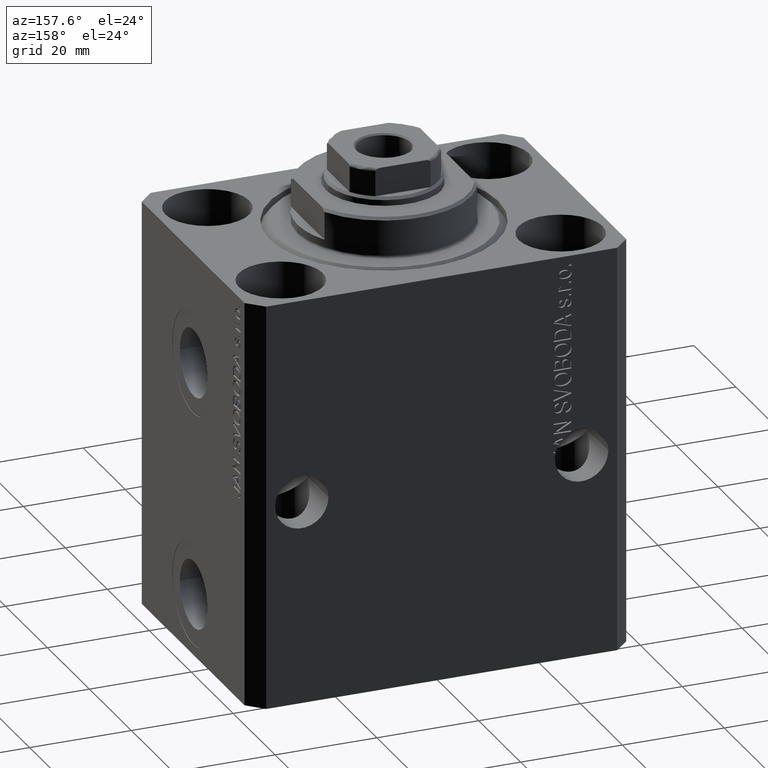
[diagram: clean part render]
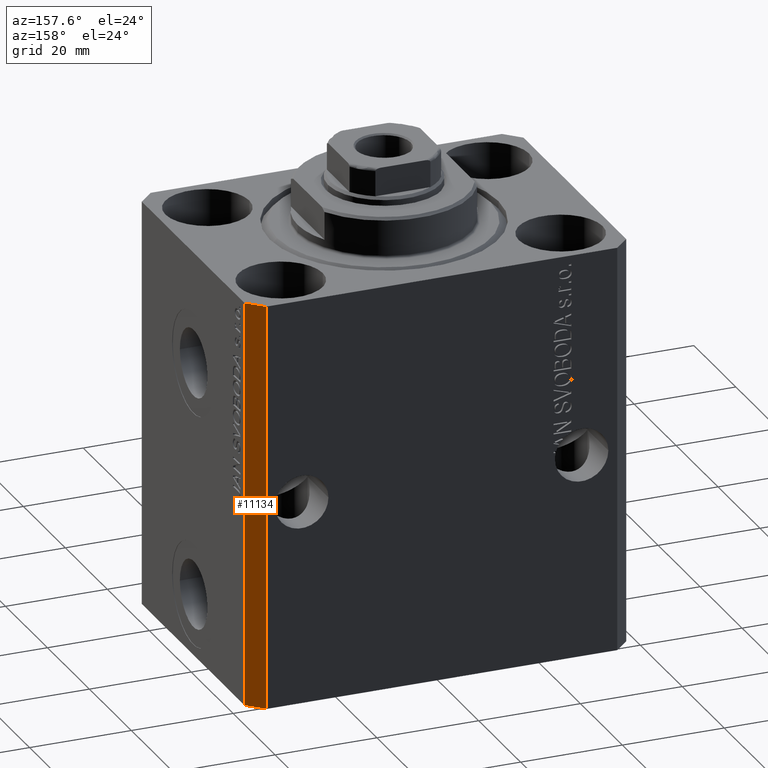
[diagram: same view with one face highlighted and labeled with its STEP entity id]
A machine part, auxiliary view. The second image highlights one B-rep face of the part: STEP entity #11134.
In plain terms, the highlighted planar face has unit normal (0.7071, 0.7071, 0).
Its self-contained STEP definition (entity closure, byte-faithful):
#183 = EDGE_LOOP ( 'NONE', ( #43701, #17239, #13094, #13806 ) ) ;
#1402 = VERTEX_POINT ( 'NONE', #8449 ) ;
#2260 = LINE ( 'NONE', #8936, #16099 ) ;
#2406 = DIRECTION ( 'NONE',  ( -0.7071067811865356934, 0.7071067811865594521, 0.000000000000000000 ) ) ;
#2920 = EDGE_CURVE ( 'NONE', #21711, #4599, #31614, .T. ) ;
#4280 = CARTESIAN_POINT ( 'NONE',  ( 37.50000000000051870, 24.49999999999995381, 0.000000000000000000 ) ) ;
#4599 = VERTEX_POINT ( 'NONE', #4280 ) ;
#5148 = CARTESIAN_POINT ( 'NONE',  ( 37.50000000000051870, 24.49999999999995381, -80.00000000000000000 ) ) ;
#8449 = CARTESIAN_POINT ( 'NONE',  ( 34.50000000000056843, 27.50000000000000000, 0.000000000000000000 ) ) ;
#8936 = CARTESIAN_POINT ( 'NONE',  ( 34.50000000000056843, 27.50000000000000000, -80.00000000000000000 ) ) ;
#9157 = DIRECTION ( 'NONE',  ( 0.000000000000000000, 0.000000000000000000, 1.000000000000000000 ) ) ;
#10891 = CARTESIAN_POINT ( 'NONE',  ( 37.50000000000051870, 24.49999999999995381, -80.00000000000000000 ) ) ;
#11134 = ADVANCED_FACE ( 'NONE', ( #39693 ), #12276, .T. ) ;
#11378 = EDGE_CURVE ( 'NONE', #21711, #20206, #25149, .T. ) ;
#11466 = LINE ( 'NONE', #18592, #40387 ) ;
#11552 = AXIS2_PLACEMENT_3D ( 'NONE', #5148, #42616, #43277 ) ;
#12276 = PLANE ( 'NONE',  #11552 ) ;
#13094 = ORIENTED_EDGE ( 'NONE', *, *, #11378, .T. ) ;
#13806 = ORIENTED_EDGE ( 'NONE', *, *, #25464, .T. ) ;
#16099 = VECTOR ( 'NONE', #9157, 1000.000000000000000 ) ;
#17239 = ORIENTED_EDGE ( 'NONE', *, *, #2920, .F. ) ;
#18592 = CARTESIAN_POINT ( 'NONE',  ( 37.50000000000051870, 24.49999999999995381, 0.000000000000000000 ) ) ;
#18709 = VECTOR ( 'NONE', #2406, 1000.000000000000114 ) ;
#19131 = CARTESIAN_POINT ( 'NONE',  ( 37.50000000000051870, 24.49999999999995381, -80.00000000000000000 ) ) ;
#20206 = VERTEX_POINT ( 'NONE', #25365 ) ;
#21711 = VERTEX_POINT ( 'NONE', #41758 ) ;
#25149 = LINE ( 'NONE', #19131, #18709 ) ;
#25365 = CARTESIAN_POINT ( 'NONE',  ( 34.50000000000056843, 27.50000000000000000, -80.00000000000000000 ) ) ;
#25464 = EDGE_CURVE ( 'NONE', #20206, #1402, #2260, .T. ) ;
#28440 = VECTOR ( 'NONE', #30129, 1000.000000000000000 ) ;
#30129 = DIRECTION ( 'NONE',  ( 0.000000000000000000, 0.000000000000000000, 1.000000000000000000 ) ) ;
#31614 = LINE ( 'NONE', #10891, #28440 ) ;
#34666 = DIRECTION ( 'NONE',  ( -0.7071067811865356934, 0.7071067811865594521, 0.000000000000000000 ) ) ;
#39693 = FACE_OUTER_BOUND ( 'NONE', #183, .T. ) ;
#40387 = VECTOR ( 'NONE', #34666, 1000.000000000000114 ) ;
#41758 = CARTESIAN_POINT ( 'NONE',  ( 37.50000000000051870, 24.49999999999995381, -80.00000000000000000 ) ) ;
#42616 = DIRECTION ( 'NONE',  ( 0.7071067811865594521, 0.7071067811865356934, -0.000000000000000000 ) ) ;
#43059 = EDGE_CURVE ( 'NONE', #4599, #1402, #11466, .T. ) ;
#43277 = DIRECTION ( 'NONE',  ( -0.7071067811865356934, 0.7071067811865594521, 0.000000000000000000 ) ) ;
#43701 = ORIENTED_EDGE ( 'NONE', *, *, #43059, .F. ) ;